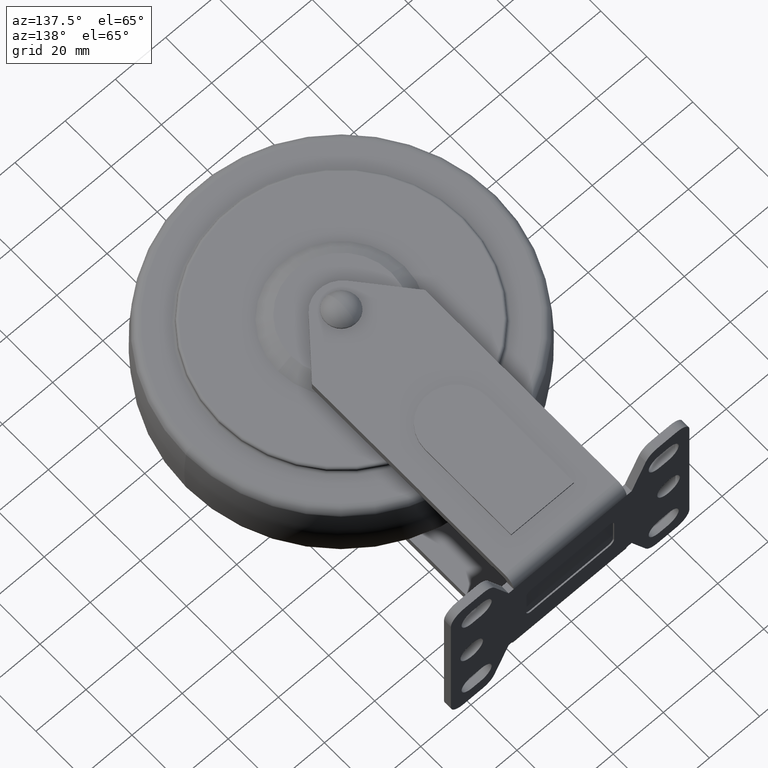
[diagram: clean part render]
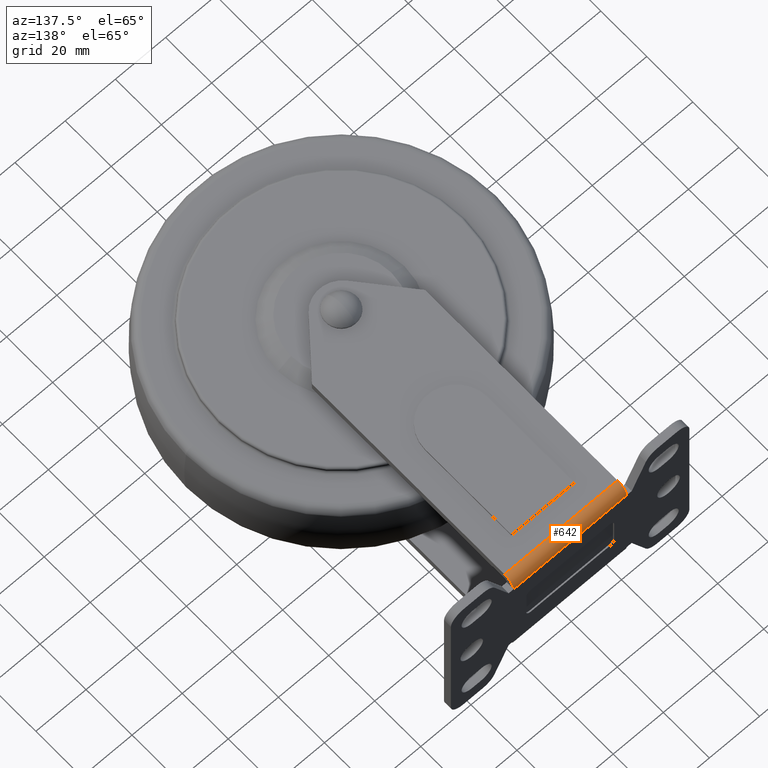
[diagram: same view with one face highlighted and labeled with its STEP entity id]
A machine part, auxiliary view. The second image highlights one B-rep face of the part: STEP entity #642.
In plain terms, the highlighted cylindrical surface (edge-blend (fillet) strip) has radius 4 mm, axis along (1, 0, -0).
Its self-contained STEP definition (entity closure, byte-faithful):
#55 = VERTEX_POINT ( 'NONE', #2705 ) ;
#143 = DIRECTION ( 'NONE',  ( 1.000000000000000000, 1.460819769243627131E-16, -1.748530609438974524E-32 ) ) ;
#170 = FACE_OUTER_BOUND ( 'NONE', #4675, .T. ) ;
#289 = DIRECTION ( 'NONE',  ( 0.000000000000000000, -1.000000000000000000, 0.000000000000000000 ) ) ;
#375 = CARTESIAN_POINT ( 'NONE',  ( 22.50000000000000711, 95.50000000000001421, 18.00000000000000000 ) ) ;
#642 = ADVANCED_FACE ( 'NONE', ( #170 ), #1648, .T. ) ;
#678 = CARTESIAN_POINT ( 'NONE',  ( 22.49999999999998934, 99.50000000000000000, 18.00000000000000711 ) ) ;
#782 = ORIENTED_EDGE ( 'NONE', *, *, #914, .F. ) ;
#914 = EDGE_CURVE ( 'NONE', #1825, #2262, #2614, .T. ) ;
#1247 = DIRECTION ( 'NONE',  ( 0.000000000000000000, 1.000000000000000000, -1.040834085586083310E-14 ) ) ;
#1421 = CIRCLE ( 'NONE', #4182, 4.000000000000003553 ) ;
#1575 = DIRECTION ( 'NONE',  ( 0.000000000000000000, 1.000000000000000000, 0.000000000000000000 ) ) ;
#1648 = CYLINDRICAL_SURFACE ( 'NONE', #1829, 4.000000000000003553 ) ;
#1654 = VECTOR ( 'NONE', #4874, 1000.000000000000000 ) ;
#1825 = VERTEX_POINT ( 'NONE', #3447 ) ;
#1829 = AXIS2_PLACEMENT_3D ( 'NONE', #2342, #143, #1575 ) ;
#1967 = CARTESIAN_POINT ( 'NONE',  ( 22.50000000000000711, 99.50000000000001421, 18.00000000000000000 ) ) ;
#2262 = VERTEX_POINT ( 'NONE', #4560 ) ;
#2342 = CARTESIAN_POINT ( 'NONE',  ( -62.50000000000000000, 95.50000000000000000, 18.00000000000000000 ) ) ;
#2614 = LINE ( 'NONE', #4481, #1654 ) ;
#2705 = CARTESIAN_POINT ( 'NONE',  ( -22.50000000000000355, 99.50000000000000000, 18.00000000000001421 ) ) ;
#2751 = CARTESIAN_POINT ( 'NONE',  ( -22.50000000000000711, 95.50000000000000000, 18.00000000000000000 ) ) ;
#3357 = AXIS2_PLACEMENT_3D ( 'NONE', #375, #3393, #289 ) ;
#3393 = DIRECTION ( 'NONE',  ( 1.000000000000000000, -4.096858544271749044E-17, -0.000000000000000000 ) ) ;
#3447 = CARTESIAN_POINT ( 'NONE',  ( 22.50000000000001421, 95.50000000000000000, 21.99999999999999645 ) ) ;
#3472 = EDGE_CURVE ( 'NONE', #4546, #1825, #4389, .T. ) ;
#3551 = DIRECTION ( 'NONE',  ( 1.000000000000000000, 1.460819769243627131E-16, -1.748530609438974524E-32 ) ) ;
#3631 = VECTOR ( 'NONE', #3551, 1000.000000000000000 ) ;
#3828 = LINE ( 'NONE', #1967, #3631 ) ;
#3908 = ORIENTED_EDGE ( 'NONE', *, *, #4392, .F. ) ;
#3927 = ORIENTED_EDGE ( 'NONE', *, *, #3472, .F. ) ;
#3999 = EDGE_CURVE ( 'NONE', #55, #4546, #3828, .T. ) ;
#4182 = AXIS2_PLACEMENT_3D ( 'NONE', #2751, #4644, #1247 ) ;
#4188 = ORIENTED_EDGE ( 'NONE', *, *, #3999, .F. ) ;
#4389 = CIRCLE ( 'NONE', #3357, 4.000000000000003553 ) ;
#4392 = EDGE_CURVE ( 'NONE', #2262, #55, #1421, .T. ) ;
#4481 = CARTESIAN_POINT ( 'NONE',  ( -22.50000000000000711, 95.50000000000000000, 22.00000000000000000 ) ) ;
#4546 = VERTEX_POINT ( 'NONE', #678 ) ;
#4560 = CARTESIAN_POINT ( 'NONE',  ( -22.50000000000000711, 95.50000000000000000, 22.00000000000000000 ) ) ;
#4644 = DIRECTION ( 'NONE',  ( -1.000000000000000000, -2.048429272135874399E-16, -0.000000000000000000 ) ) ;
#4675 = EDGE_LOOP ( 'NONE', ( #3927, #4188, #3908, #782 ) ) ;
#4874 = DIRECTION ( 'NONE',  ( -1.000000000000000000, -1.460819769243627131E-16, 1.748530609438974524E-32 ) ) ;